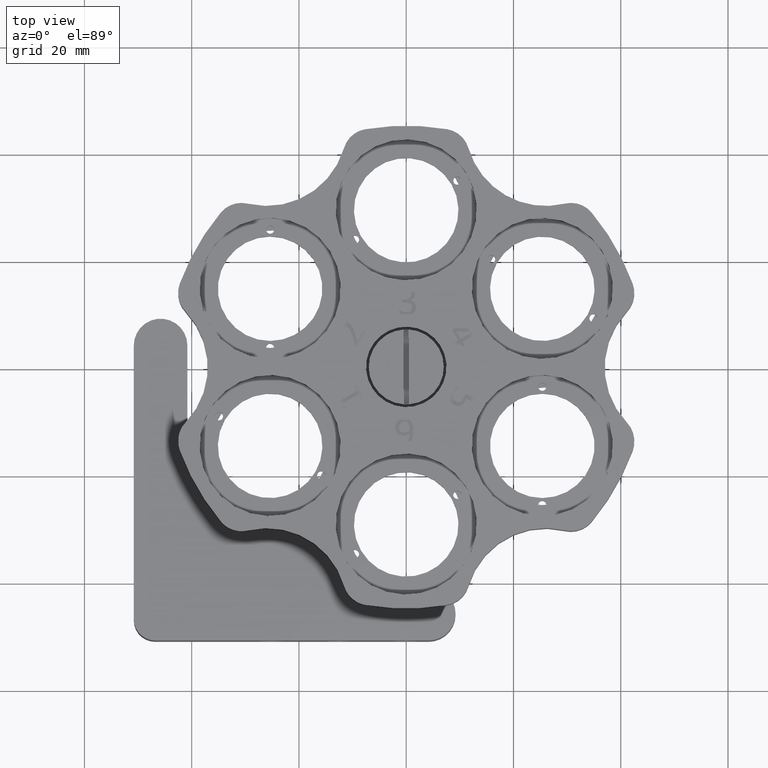
[diagram: clean part render]
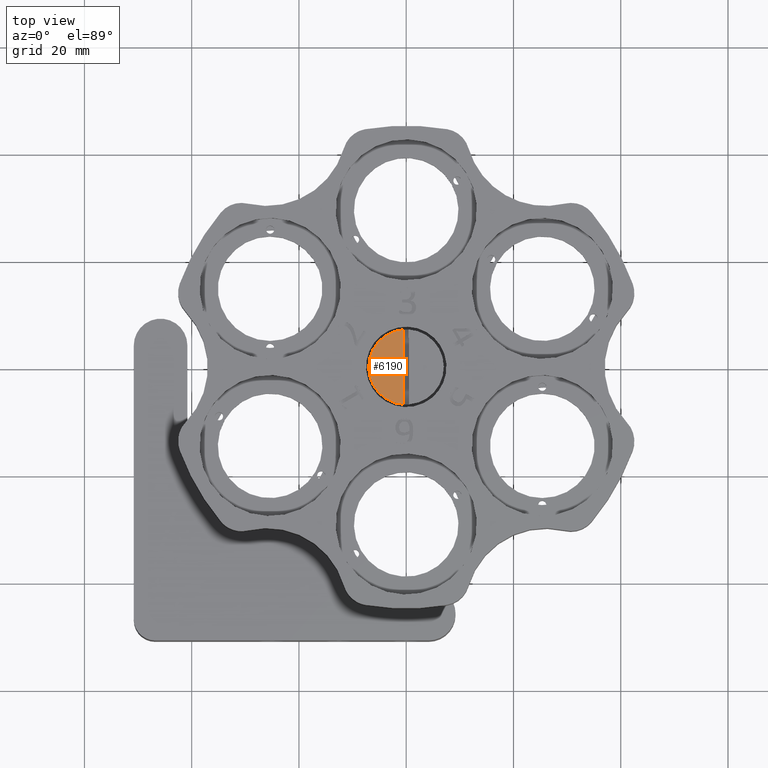
[diagram: same view with one face highlighted and labeled with its STEP entity id]
A machine part, top view. The second image highlights one B-rep face of the part: STEP entity #6190.
In plain terms, the highlighted planar face has unit normal (-0, -0, -1).
Its self-contained STEP definition (entity closure, byte-faithful):
#153 = CARTESIAN_POINT ( 'NONE',  ( -1.155557966632385300E-033, 4.286122238378303600E-016, 10.49999999999999800 ) ) ;
#294 = AXIS2_PLACEMENT_3D ( 'NONE', #4283, #8138, #4400 ) ;
#296 = DIRECTION ( 'NONE',  ( -0.9999749282751346800, -0.007081159590023478100, 0.0000000000000000000 ) ) ;
#465 = DIRECTION ( 'NONE',  ( -5.695897023337631600E-032, -1.224606353822370400E-016, -1.000000000000000000 ) ) ;
#573 = VERTEX_POINT ( 'NONE', #7078 ) ;
#2634 = DIRECTION ( 'NONE',  ( -0.007081159590025087900, 0.9999749282751345700, -1.224575650828805000E-016 ) ) ;
#3090 = CIRCLE ( 'NONE', #4204, 7.000000000000002700 ) ;
#3411 = CARTESIAN_POINT ( 'NONE',  ( -6.999824497925941600, -0.04956811713016327800, 10.49999999999999800 ) ) ;
#4084 = PLANE ( 'NONE',  #294 ) ;
#4204 = AXIS2_PLACEMENT_3D ( 'NONE', #7674, #465, #296 ) ;
#4283 = CARTESIAN_POINT ( 'NONE',  ( -1.155557966632385300E-033, 4.286122238378303600E-016, 10.49999999999999800 ) ) ;
#4400 = DIRECTION ( 'NONE',  ( -0.9999749282751346800, -0.007081159590023478900, 8.671633026373752500E-019 ) ) ;
#4510 = LINE ( 'NONE', #12077, #9976 ) ;
#5207 = VERTEX_POINT ( 'NONE', #3411 ) ;
#5698 = CIRCLE ( 'NONE', #11115, 7.000000000000002700 ) ;
#5898 = ORIENTED_EDGE ( 'NONE', *, *, #10271, .F. ) ;
#6190 = ADVANCED_FACE ( 'NONE', ( #11662 ), #4084, .F. ) ;
#6257 = EDGE_LOOP ( 'NONE', ( #11176, #8417, #5898 ) ) ;
#7078 = CARTESIAN_POINT ( 'NONE',  ( -0.4505459579858946400, -6.985485547887315700, 10.49999999999999800 ) ) ;
#7674 = CARTESIAN_POINT ( 'NONE',  ( -1.155557966632385300E-033, 4.286122238378303600E-016, 10.49999999999999800 ) ) ;
#8138 = DIRECTION ( 'NONE',  ( -7.886683122265728600E-032, -1.224606353822370400E-016, -1.000000000000000000 ) ) ;
#8417 = ORIENTED_EDGE ( 'NONE', *, *, #9205, .T. ) ;
#9205 = EDGE_CURVE ( 'NONE', #573, #12058, #4510, .T. ) ;
#9873 = DIRECTION ( 'NONE',  ( -0.9999749282751346800, -0.007081159590023478100, 0.0000000000000000000 ) ) ;
#9976 = VECTOR ( 'NONE', #2634, 1000.000000000000100 ) ;
#10271 = EDGE_CURVE ( 'NONE', #5207, #12058, #3090, .T. ) ;
#11115 = AXIS2_PLACEMENT_3D ( 'NONE', #153, #11165, #9873 ) ;
#11165 = DIRECTION ( 'NONE',  ( -5.695897023337631600E-032, -1.224606353822370400E-016, -1.000000000000000000 ) ) ;
#11176 = ORIENTED_EDGE ( 'NONE', *, *, #11648, .F. ) ;
#11648 = EDGE_CURVE ( 'NONE', #573, #5207, #5698, .T. ) ;
#11662 = FACE_OUTER_BOUND ( 'NONE', #6257, .T. ) ;
#11829 = CARTESIAN_POINT ( 'NONE',  ( -0.5494289702892404300, 6.978404388297295000, 10.49999999999999800 ) ) ;
#12058 = VERTEX_POINT ( 'NONE', #11829 ) ;
#12077 = CARTESIAN_POINT ( 'NONE',  ( -0.4999874641375677300, -0.003540579795011364300, 10.49999999999999800 ) ) ;